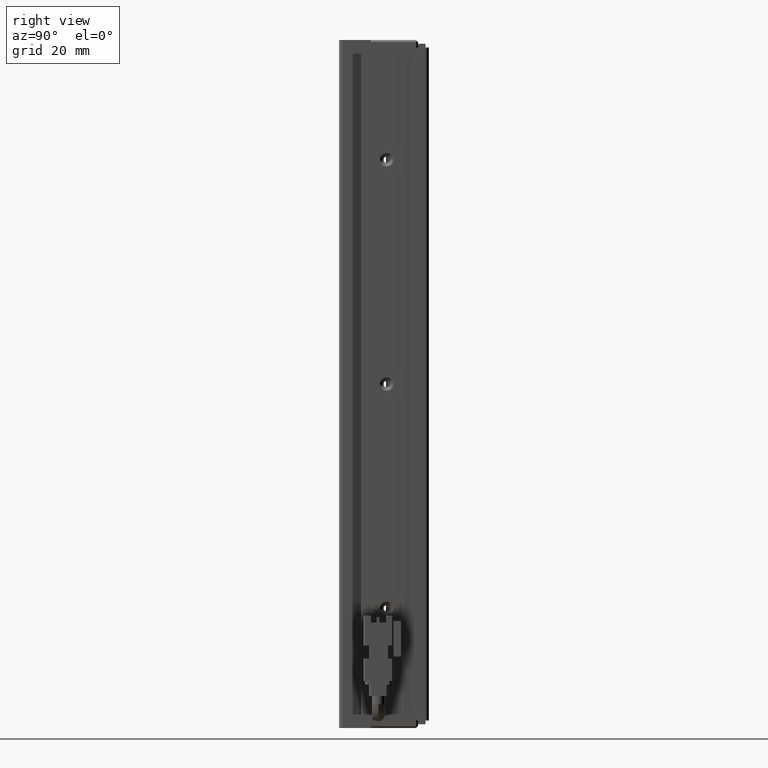
[diagram: clean part render]
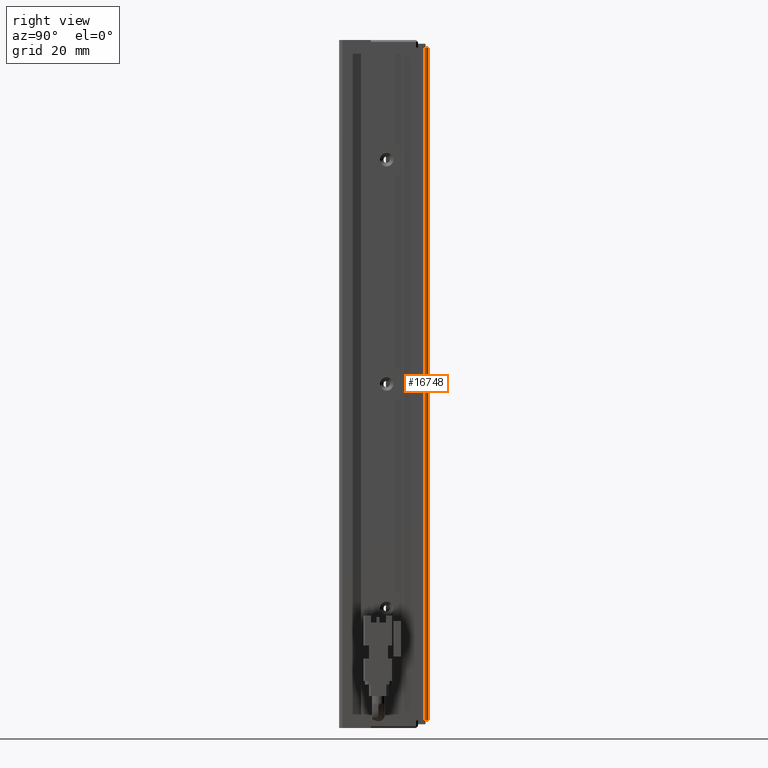
[diagram: same view with one face highlighted and labeled with its STEP entity id]
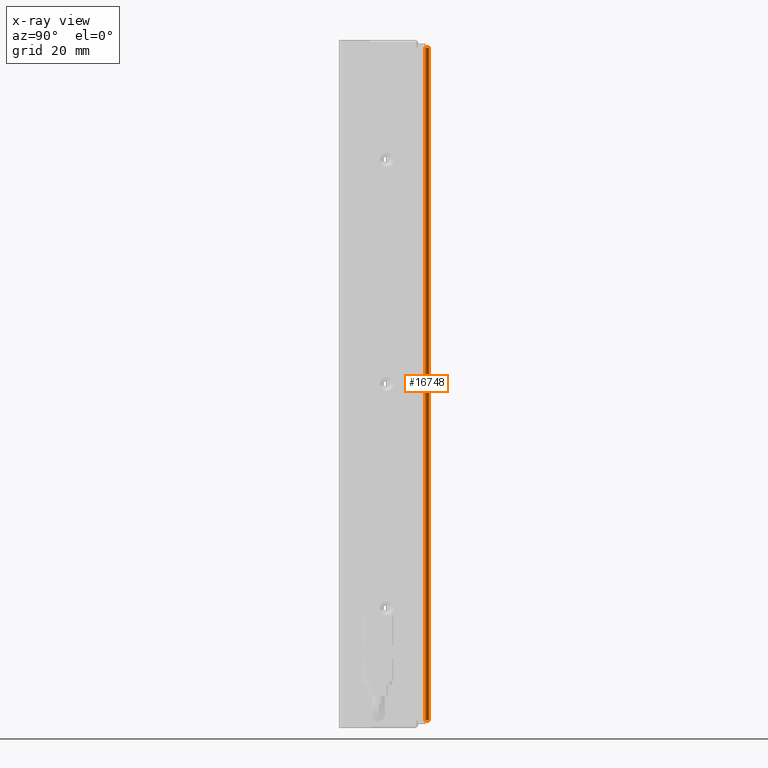
[diagram: x-ray of the same camera — body ghosted, the highlighted face saturated]
A machine part, right view. The second image highlights one B-rep face of the part: STEP entity #16748.
The next image is the same camera in x-ray: the body ghosted, the highlighted face saturated — about 0% of this face is hidden behind the body in this view.
In plain terms, the highlighted cylindrical surface (edge-blend (fillet) strip) has radius 1 mm, axis along (-0, -0, -1).
Its self-contained STEP definition (entity closure, byte-faithful):
#691 = ORIENTED_EDGE ( 'NONE', *, *, #30742, .T. ) ;
#769 = CARTESIAN_POINT ( 'NONE',  ( 57.42537974683541800, 33.99073232304837700, -25.00000000000000700 ) ) ;
#2923 = VECTOR ( 'NONE', #14034, 1000.000000000000000 ) ;
#8030 = DIRECTION ( 'NONE',  ( -1.000000000000000000, 0.0000000000000000000, 0.0000000000000000000 ) ) ;
#9081 = ORIENTED_EDGE ( 'NONE', *, *, #48045, .T. ) ;
#13061 = DIRECTION ( 'NONE',  ( -1.000000000000000000, 0.0000000000000000000, 0.0000000000000000000 ) ) ;
#13639 = CARTESIAN_POINT ( 'NONE',  ( 57.42537974683541800, 33.99073232304837700, -205.0000000000000300 ) ) ;
#14034 = DIRECTION ( 'NONE',  ( 0.0000000000000000000, 0.0000000000000000000, 1.000000000000000000 ) ) ;
#16748 = ADVANCED_FACE ( 'NONE', ( #29744 ), #36447, .T. ) ;
#18142 = CARTESIAN_POINT ( 'NONE',  ( 58.42537974683542500, 33.99073232304837700, -25.00000000000000700 ) ) ;
#21008 = LINE ( 'NONE', #37507, #2923 ) ;
#21613 = CARTESIAN_POINT ( 'NONE',  ( 58.42537974683542500, 33.99073232304837700, -23.00000000000000700 ) ) ;
#23892 = VERTEX_POINT ( 'NONE', #59619 ) ;
#23918 = VERTEX_POINT ( 'NONE', #72661 ) ;
#26312 = EDGE_CURVE ( 'NONE', #67385, #23892, #21008, .T. ) ;
#28855 = EDGE_CURVE ( 'NONE', #23918, #67385, #55405, .T. ) ;
#29456 = AXIS2_PLACEMENT_3D ( 'NONE', #73036, #67440, #36788 ) ;
#29744 = FACE_OUTER_BOUND ( 'NONE', #52166, .T. ) ;
#30742 = EDGE_CURVE ( 'NONE', #23892, #32233, #65344, .T. ) ;
#32233 = VERTEX_POINT ( 'NONE', #18142 ) ;
#35449 = LINE ( 'NONE', #21613, #46719 ) ;
#36447 = CYLINDRICAL_SURFACE ( 'NONE', #29456, 1.000000000000000900 ) ;
#36788 = DIRECTION ( 'NONE',  ( -1.000000000000000000, 0.0000000000000000000, 0.0000000000000000000 ) ) ;
#37507 = CARTESIAN_POINT ( 'NONE',  ( 57.42537974683541100, 34.99073232304837700, -23.00000000000000700 ) ) ;
#41127 = AXIS2_PLACEMENT_3D ( 'NONE', #769, #55796, #13061 ) ;
#45669 = ORIENTED_EDGE ( 'NONE', *, *, #26312, .T. ) ;
#46719 = VECTOR ( 'NONE', #51938, 1000.000000000000000 ) ;
#48045 = EDGE_CURVE ( 'NONE', #32233, #23918, #35449, .T. ) ;
#51938 = DIRECTION ( 'NONE',  ( -0.0000000000000000000, -0.0000000000000000000, -1.000000000000000000 ) ) ;
#52166 = EDGE_LOOP ( 'NONE', ( #9081, #68715, #45669, #691 ) ) ;
#55339 = CARTESIAN_POINT ( 'NONE',  ( 57.42537974683541800, 34.99073232304837700, -205.0000000000000300 ) ) ;
#55405 = CIRCLE ( 'NONE', #77856, 1.000000000000000900 ) ;
#55796 = DIRECTION ( 'NONE',  ( -0.0000000000000000000, -0.0000000000000000000, -1.000000000000000000 ) ) ;
#56089 = DIRECTION ( 'NONE',  ( 0.0000000000000000000, 0.0000000000000000000, 1.000000000000000000 ) ) ;
#59619 = CARTESIAN_POINT ( 'NONE',  ( 57.42537974683541800, 34.99073232304837700, -25.00000000000000700 ) ) ;
#65344 = CIRCLE ( 'NONE', #41127, 1.000000000000000900 ) ;
#67385 = VERTEX_POINT ( 'NONE', #55339 ) ;
#67440 = DIRECTION ( 'NONE',  ( -0.0000000000000000000, -0.0000000000000000000, -1.000000000000000000 ) ) ;
#68715 = ORIENTED_EDGE ( 'NONE', *, *, #28855, .T. ) ;
#72661 = CARTESIAN_POINT ( 'NONE',  ( 58.42537974683542500, 33.99073232304837700, -205.0000000000000300 ) ) ;
#73036 = CARTESIAN_POINT ( 'NONE',  ( 57.42537974683541800, 33.99073232304837700, -23.00000000000000700 ) ) ;
#77856 = AXIS2_PLACEMENT_3D ( 'NONE', #13639, #56089, #8030 ) ;